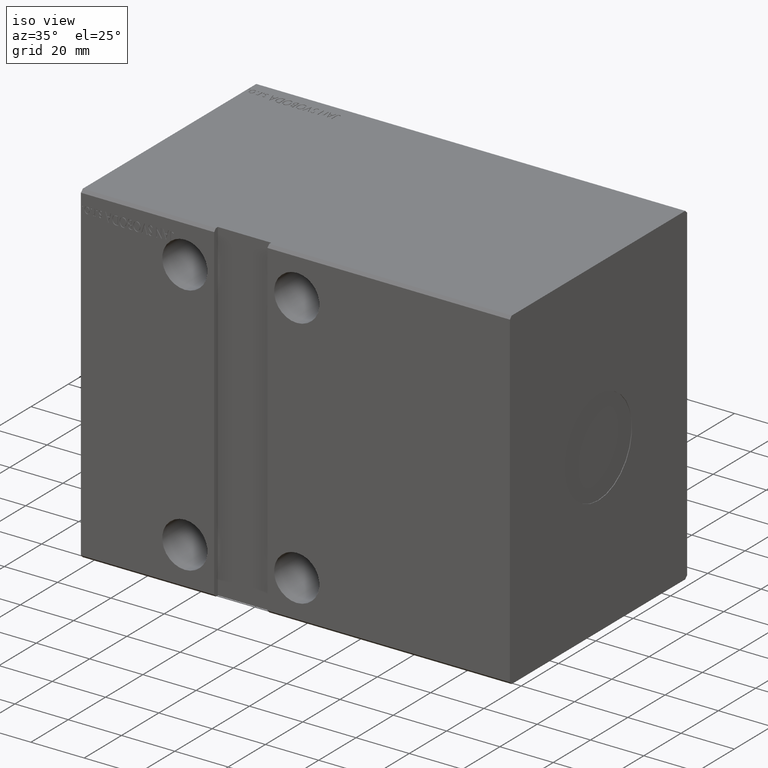
[diagram: clean part render]
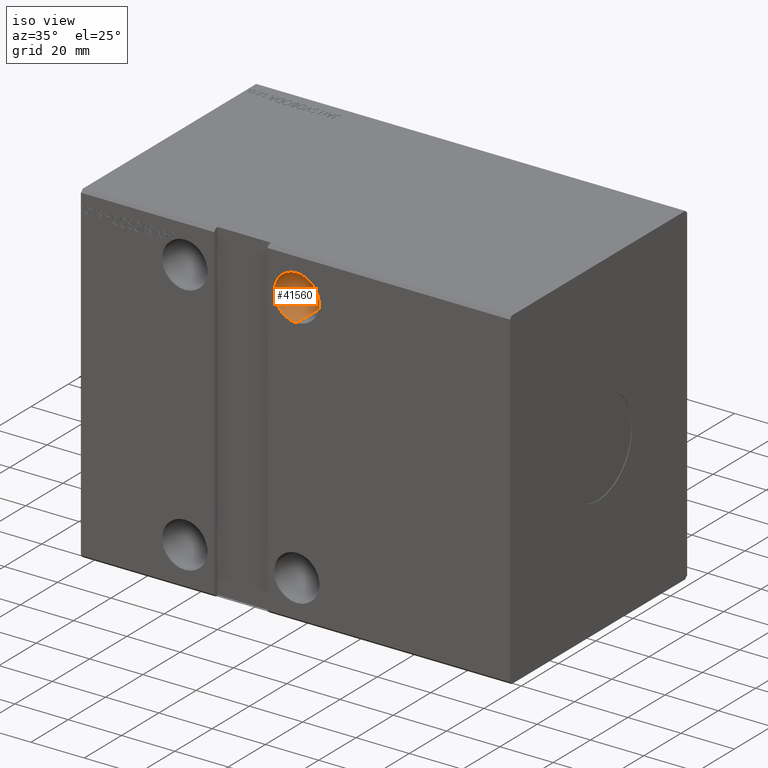
[diagram: same view with one face highlighted and labeled with its STEP entity id]
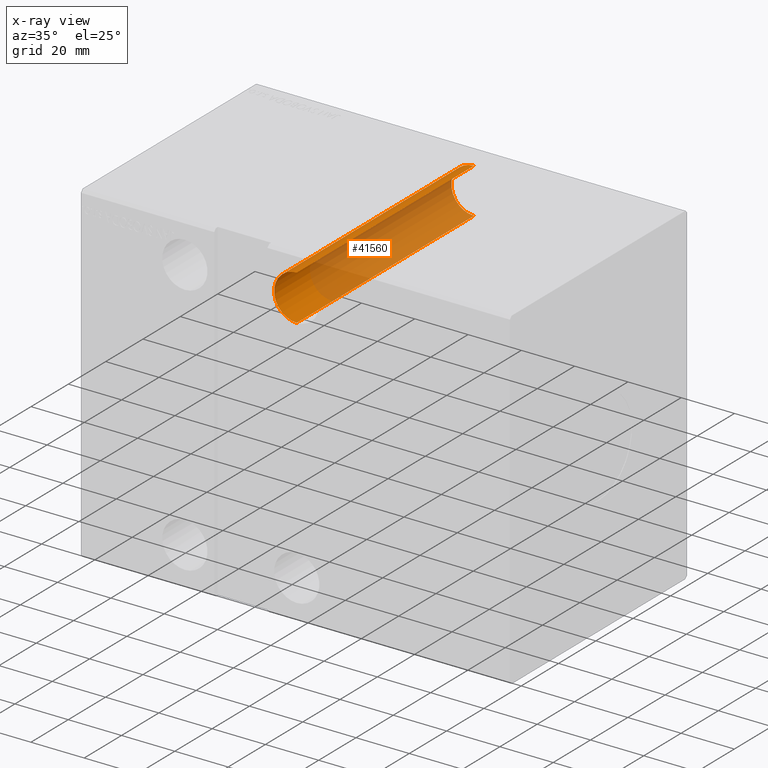
[diagram: x-ray of the same camera — body ghosted, the highlighted face saturated]
A machine part, iso view. The second image highlights one B-rep face of the part: STEP entity #41560.
The next image is the same camera in x-ray: the body ghosted, the highlighted face saturated — about 69% of this face is hidden behind the body in this view.
In plain terms, the highlighted cylindrical surface (edge-blend (fillet) strip) has radius 8.5 mm, axis along (-0, -1, -0).
Its self-contained STEP definition (entity closure, byte-faithful):
#2 = DIRECTION ( 'NONE',  ( 0.000000000000000000, 0.000000000000000000, 1.000000000000000000 ) ) ;
#640 = CARTESIAN_POINT ( 'NONE',  ( 81.00000000000000000, -47.50000000000000711, 55.99999999999999289 ) ) ;
#700 = VECTOR ( 'NONE', #40225, 1000.000000000000000 ) ;
#907 = VECTOR ( 'NONE', #34793, 1000.000000000000000 ) ;
#1787 = CIRCLE ( 'NONE', #40598, 8.499999999999992895 ) ;
#3476 = ORIENTED_EDGE ( 'NONE', *, *, #32039, .T. ) ;
#6195 = DIRECTION ( 'NONE',  ( -0.000000000000000000, 1.000000000000000000, 5.507058653894625853E-17 ) ) ;
#7618 = CARTESIAN_POINT ( 'NONE',  ( 81.00000000000000000, 47.50000000000004974, 39.00000000000000711 ) ) ;
#10047 = DIRECTION ( 'NONE',  ( -0.000000000000000000, -1.000000000000000000, -5.507058653894625237E-17 ) ) ;
#10594 = EDGE_CURVE ( 'NONE', #30535, #30586, #1787, .T. ) ;
#10839 = CARTESIAN_POINT ( 'NONE',  ( 81.00000000000000000, -47.50000000000000711, 47.49999999999999289 ) ) ;
#11668 = DIRECTION ( 'NONE',  ( 0.000000000000000000, -1.000000000000000000, -1.692413147294446216E-16 ) ) ;
#15159 = EDGE_LOOP ( 'NONE', ( #29033, #29780, #3476, #16229 ) ) ;
#16021 = CARTESIAN_POINT ( 'NONE',  ( 81.00000000000000000, 47.50000000000004974, 47.50000000000000000 ) ) ;
#16204 = CARTESIAN_POINT ( 'NONE',  ( 81.00000000000000000, 47.50000000000004974, 47.50000000000000000 ) ) ;
#16229 = ORIENTED_EDGE ( 'NONE', *, *, #19830, .F. ) ;
#17648 = DIRECTION ( 'NONE',  ( 0.000000000000000000, 0.000000000000000000, 1.000000000000000000 ) ) ;
#19830 = EDGE_CURVE ( 'NONE', #30535, #20643, #32412, .T. ) ;
#20643 = VERTEX_POINT ( 'NONE', #42150 ) ;
#21283 = CIRCLE ( 'NONE', #40361, 8.500000000000000000 ) ;
#22830 = VERTEX_POINT ( 'NONE', #640 ) ;
#23506 = CARTESIAN_POINT ( 'NONE',  ( 81.00000000000000000, 47.50000000000004974, 55.99999999999999289 ) ) ;
#24967 = LINE ( 'NONE', #37994, #907 ) ;
#29033 = ORIENTED_EDGE ( 'NONE', *, *, #10594, .T. ) ;
#29780 = ORIENTED_EDGE ( 'NONE', *, *, #33856, .T. ) ;
#30535 = VERTEX_POINT ( 'NONE', #7618 ) ;
#30586 = VERTEX_POINT ( 'NONE', #23506 ) ;
#32036 = DIRECTION ( 'NONE',  ( 0.000000000000000000, 0.000000000000000000, -1.000000000000000000 ) ) ;
#32039 = EDGE_CURVE ( 'NONE', #22830, #20643, #21283, .T. ) ;
#32248 = CYLINDRICAL_SURFACE ( 'NONE', #37413, 8.499999999999992895 ) ;
#32412 = LINE ( 'NONE', #38811, #700 ) ;
#33856 = EDGE_CURVE ( 'NONE', #30586, #22830, #24967, .T. ) ;
#34793 = DIRECTION ( 'NONE',  ( -0.000000000000000000, -1.000000000000000000, -5.507058653894625237E-17 ) ) ;
#37413 = AXIS2_PLACEMENT_3D ( 'NONE', #16021, #10047, #32036 ) ;
#37994 = CARTESIAN_POINT ( 'NONE',  ( 81.00000000000000000, 47.50000000000004974, 55.99999999999999289 ) ) ;
#38811 = CARTESIAN_POINT ( 'NONE',  ( 81.00000000000000000, 47.50000000000004974, 39.00000000000000711 ) ) ;
#38853 = FACE_OUTER_BOUND ( 'NONE', #15159, .T. ) ;
#40225 = DIRECTION ( 'NONE',  ( -0.000000000000000000, -1.000000000000000000, -5.507058653894625237E-17 ) ) ;
#40361 = AXIS2_PLACEMENT_3D ( 'NONE', #10839, #11668, #17648 ) ;
#40598 = AXIS2_PLACEMENT_3D ( 'NONE', #16204, #6195, #2 ) ;
#41560 = ADVANCED_FACE ( 'NONE', ( #38853 ), #32248, .F. ) ;
#42150 = CARTESIAN_POINT ( 'NONE',  ( 81.00000000000000000, -47.50000000000000711, 38.99999999999999289 ) ) ;